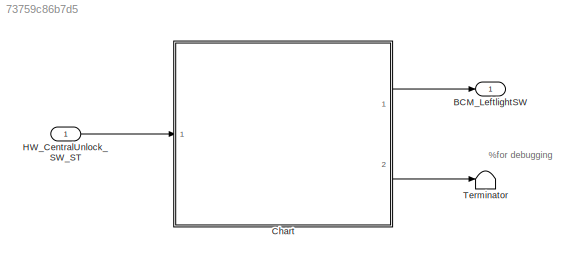
MODEL slx_73759c86b7d5
KIND model
CONFIG AbsTol = auto
CONFIG EnableMultiTasking = off
CONFIG FixedStep = 0.01
CONFIG MaxStep = auto
CONFIG MinStep = auto
CONFIG RelTol = 1e-3
CONFIG SampleTimeConstraint = Unconstrained
CONFIG Solver = FixedStepDiscrete
CONFIG SolverName = FixedStepDiscrete
CONFIG StartTime = 0.0
CONFIG StopTime = 20
WORKSPACE source: MAT-file member
WORKSPACE MCOS: class17 (value not decoded)
BLOCK [Outport] BCM_LeftlightSW
  IconDisplay = Port number
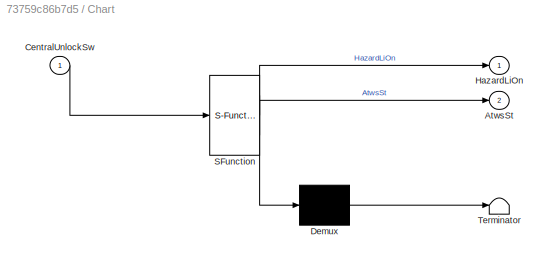
BLOCK [SubSystem] Chart
  ErrorFcn = Stateflow.Translate.translate
  PermitHierarchicalResolution = ExplicitOnly
  Ports = [1, 2]
  RequestExecContextInheritance = off
  SFBlockType = Chart
  TreatAsAtomicUnit = on
  Variant = off
BLOCK [Demux] Chart/ Demux 
  Outputs = 1
  Ports = [1, 1]
BLOCK [S-Function] Chart/ SFunction 
  EnableBusSupport = on
  FunctionName = sf_sfun
  Parameters = M_TIME_400MS,M_TIME_5S,M_TIME_800MS
  PortCounts = [1 3]
  Ports = [1, 3]
  SFcnIsStateOwnerBlock = off
  SFunctionDeploymentMode = off
  Tag = Stateflow S-Function ATWS 1
BLOCK [Terminator] Chart/ Terminator 
BLOCK [Outport] Chart/AtwsSt
  IconDisplay = Port number
  Port = 2
BLOCK [Inport] Chart/CentralUnlockSw
  IconDisplay = Port number
BLOCK [Outport] Chart/HazardLiOn
  IconDisplay = Port number
BLOCK [Inport] HW_CentralUnlock_SW_ST
  IconDisplay = Port number
BLOCK [Terminator] Terminator
ANNOTATION (root): %for debugging
LINE Chart:1 -> BCM_LeftlightSW:1
LINE Chart:2 -> Terminator:1
LINE HW_CentralUnlock_SW_ST:1 -> Chart:1
CHART Chart states=11 transitions=20
  STATE_LABEL '%Ready'
  STATE_LABEL 'AtwsInit\nAtwsCnt = 1;\n%AtwsSt = 0;\nBlkngCnt = 0;\nBcmLeLiSt = 0;\nCycCnt = 0;\nLeLiCyc = 0;'
  STATE_LABEL 'AtwsCntr\nAtwsCnt = AtwsCnt + 1\n'
  STATE_LABEL 'AtwsEnaSt\nAtwsCnt = 0;\nAtwsSt = 1\nLeLiCyc = 1;\nHazardLiOn = 1;\n'
  STATE_LABEL 'AtwsDisSt\nAtwsCnt = 0;\nAtwsSt = 0\nLeLiCyc = 2;\nHazardLiOn = 1;'
  STATE_LABEL 'AtwsLiCntrl'
  STATE_LABEL 'LiOn\nBlkngCnt = BlkngCnt+1;\nHazardLiOn = 1;'
  STATE_LABEL 'LiOff\nBlkngCnt = BlkngCnt+1;\nHazardLiOn = 0;'
  STATE_LABEL 'LiCntrInit\nBlkngCnt = 0;'
  STATE_LABEL 'LiCycCntr\nCycCnt = CycCnt + 1;'
  STATE_LABEL 'LiTerm\nBcmLeLiSt = 1;\nCycCnt = 0;'
  STATE_LABEL '[BlkngCnt >= (M_TIME_400MS-1)]'
  STATE_LABEL ' [BlkngCnt >= (M_TIME_800MS-1)]'
  STATE_LABEL '[(AtwsSt == 0) && (CycCnt < LeLiCyc)]'
  STATE_LABEL 'LiOn\nBlkngCnt = BlkngCnt+1;\nHazardLiOn = 1;'
  STATE_LABEL 'LiOff\nBlkngCnt = BlkngCnt+1;\nHazardLiOn = 0;'
  STATE_LABEL 'LiCntrInit\nBlkngCnt = 0;'
  STATE_LABEL 'LiCycCntr\nCycCnt = CycCnt + 1;'
  STATE_LABEL 'LiTerm\nBcmLeLiSt = 1;\nCycCnt = 0;'
